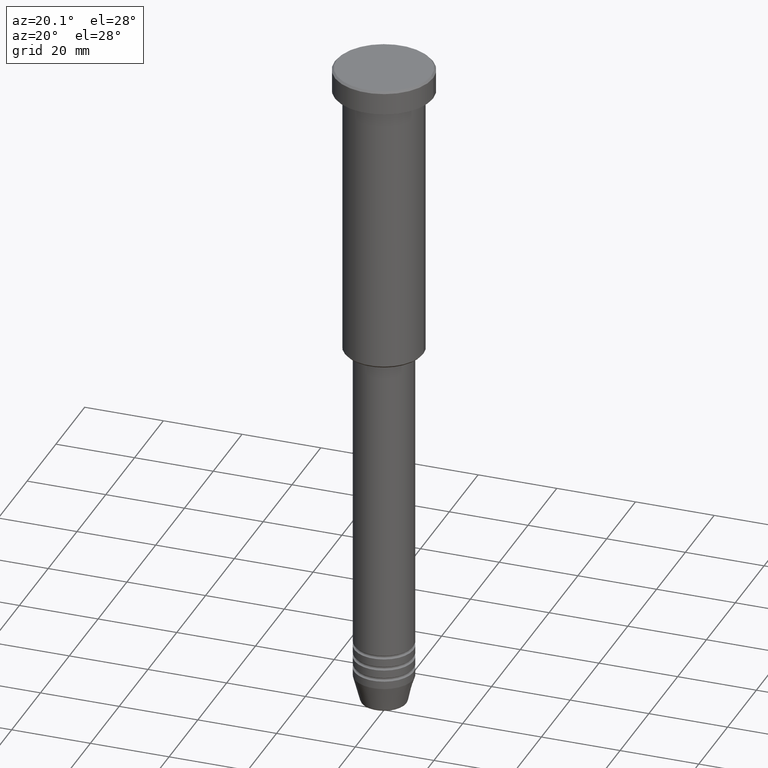
[diagram: clean part render]
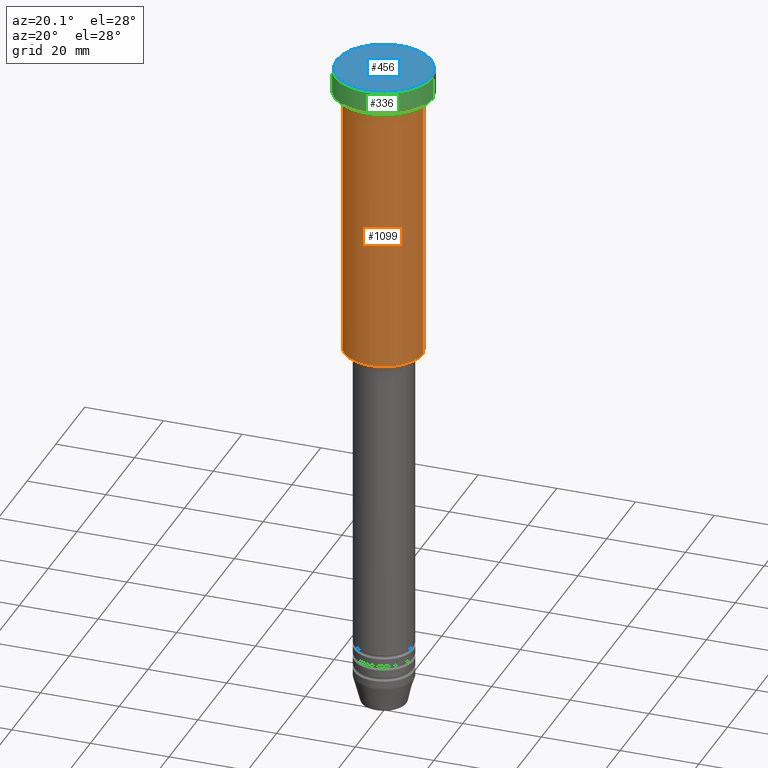
[diagram: same view with three faces highlighted in distinct colors, each labeled with its STEP entity id]
A machine part, auxiliary view with three faces highlighted in distinct colors.
Their STEP definitions:

[orange] entity #1099 — the highlighted cylindrical surface (partial cylindrical patch) has radius 10 mm, axis along (-0, -0, 1).
#32 = CARTESIAN_POINT ( 'NONE',  ( -10.00000000000000000, 1.224646799147353256E-15, -75.49999999999998579 ) ) ;
#100 = CIRCLE ( 'NONE', #1055, 10.00000000000000000 ) ;
#110 = CARTESIAN_POINT ( 'NONE',  ( 0.000000000000000000, 0.000000000000000000, -6.999999999999996447 ) ) ;
#124 = VERTEX_POINT ( 'NONE', #806 ) ;
#133 = CARTESIAN_POINT ( 'NONE',  ( -10.00000000000000000, 1.224646799147353256E-15, -6.999999999999996447 ) ) ;
#225 = ORIENTED_EDGE ( 'NONE', *, *, #500, .T. ) ;
#257 = CYLINDRICAL_SURFACE ( 'NONE', #960, 10.00000000000000000 ) ;
#261 = EDGE_CURVE ( 'NONE', #983, #124, #100, .T. ) ;
#266 = CARTESIAN_POINT ( 'NONE',  ( 0.000000000000000000, 0.000000000000000000, -75.49999999999998579 ) ) ;
#272 = DIRECTION ( 'NONE',  ( -0.000000000000000000, -0.000000000000000000, 1.000000000000000000 ) ) ;
#312 = DIRECTION ( 'NONE',  ( -0.000000000000000000, -0.000000000000000000, 1.000000000000000000 ) ) ;
#377 = VERTEX_POINT ( 'NONE', #635 ) ;
#389 = EDGE_CURVE ( 'NONE', #540, #377, #729, .T. ) ;
#397 = CARTESIAN_POINT ( 'NONE',  ( -10.00000000000000000, 1.224646799147353256E-15, 0.000000000000000000 ) ) ;
#492 = LINE ( 'NONE', #1053, #801 ) ;
#500 = EDGE_CURVE ( 'NONE', #124, #377, #492, .T. ) ;
#540 = VERTEX_POINT ( 'NONE', #133 ) ;
#573 = AXIS2_PLACEMENT_3D ( 'NONE', #110, #272, #1023 ) ;
#589 = VECTOR ( 'NONE', #312, 1000.000000000000000 ) ;
#597 = FACE_OUTER_BOUND ( 'NONE', #1033, .T. ) ;
#635 = CARTESIAN_POINT ( 'NONE',  ( 10.00000000000000000, 0.000000000000000000, -6.999999999999996447 ) ) ;
#656 = ORIENTED_EDGE ( 'NONE', *, *, #261, .T. ) ;
#661 = ORIENTED_EDGE ( 'NONE', *, *, #954, .F. ) ;
#682 = LINE ( 'NONE', #397, #589 ) ;
#693 = CARTESIAN_POINT ( 'NONE',  ( 0.000000000000000000, 0.000000000000000000, 0.000000000000000000 ) ) ;
#729 = CIRCLE ( 'NONE', #573, 10.00000000000000000 ) ;
#777 = ORIENTED_EDGE ( 'NONE', *, *, #389, .F. ) ;
#801 = VECTOR ( 'NONE', #1058, 1000.000000000000000 ) ;
#806 = CARTESIAN_POINT ( 'NONE',  ( 10.00000000000000000, 0.000000000000000000, -75.49999999999998579 ) ) ;
#875 = DIRECTION ( 'NONE',  ( 1.000000000000000000, 0.000000000000000000, 0.000000000000000000 ) ) ;
#903 = DIRECTION ( 'NONE',  ( -0.000000000000000000, -0.000000000000000000, 1.000000000000000000 ) ) ;
#954 = EDGE_CURVE ( 'NONE', #983, #540, #682, .T. ) ;
#960 = AXIS2_PLACEMENT_3D ( 'NONE', #693, #967, #875 ) ;
#967 = DIRECTION ( 'NONE',  ( -0.000000000000000000, -0.000000000000000000, 1.000000000000000000 ) ) ;
#983 = VERTEX_POINT ( 'NONE', #32 ) ;
#1023 = DIRECTION ( 'NONE',  ( 1.000000000000000000, 0.000000000000000000, 0.000000000000000000 ) ) ;
#1033 = EDGE_LOOP ( 'NONE', ( #661, #656, #225, #777 ) ) ;
#1053 = CARTESIAN_POINT ( 'NONE',  ( 10.00000000000000000, 0.000000000000000000, 0.000000000000000000 ) ) ;
#1055 = AXIS2_PLACEMENT_3D ( 'NONE', #266, #903, #1069 ) ;
#1058 = DIRECTION ( 'NONE',  ( -0.000000000000000000, -0.000000000000000000, 1.000000000000000000 ) ) ;
#1069 = DIRECTION ( 'NONE',  ( -1.000000000000000000, 0.000000000000000000, 0.000000000000000000 ) ) ;
#1099 = ADVANCED_FACE ( 'NONE', ( #597 ), #257, .T. ) ;

[blue] entity #456 — the highlighted planar face has unit normal (0, -0, 1).
#26 = DIRECTION ( 'NONE',  ( 1.000000000000000000, 0.000000000000000000, 0.000000000000000000 ) ) ;
#176 = AXIS2_PLACEMENT_3D ( 'NONE', #1034, #963, #26 ) ;
#226 = PLANE ( 'NONE',  #957 ) ;
#293 = ORIENTED_EDGE ( 'NONE', *, *, #969, .T. ) ;
#363 = CIRCLE ( 'NONE', #176, 12.00000000000001066 ) ;
#400 = DIRECTION ( 'NONE',  ( 0.000000000000000000, -0.000000000000000000, 1.000000000000000000 ) ) ;
#419 = AXIS2_PLACEMENT_3D ( 'NONE', #857, #678, #1049 ) ;
#420 = CARTESIAN_POINT ( 'NONE',  ( -12.00000000000001066, 0.000000000000000000, 0.000000000000000000 ) ) ;
#456 = ADVANCED_FACE ( 'NONE', ( #586 ), #226, .T. ) ;
#471 = VERTEX_POINT ( 'NONE', #1148 ) ;
#506 = ORIENTED_EDGE ( 'NONE', *, *, #583, .T. ) ;
#583 = EDGE_CURVE ( 'NONE', #1127, #471, #877, .T. ) ;
#586 = FACE_OUTER_BOUND ( 'NONE', #976, .T. ) ;
#678 = DIRECTION ( 'NONE',  ( -0.000000000000000000, -0.000000000000000000, 1.000000000000000000 ) ) ;
#850 = CARTESIAN_POINT ( 'NONE',  ( 0.000000000000000000, 0.000000000000000000, 0.000000000000000000 ) ) ;
#857 = CARTESIAN_POINT ( 'NONE',  ( 0.000000000000000000, 0.000000000000000000, 0.000000000000000000 ) ) ;
#873 = DIRECTION ( 'NONE',  ( 1.000000000000000000, 0.000000000000000000, 0.000000000000000000 ) ) ;
#877 = CIRCLE ( 'NONE', #419, 12.00000000000001066 ) ;
#957 = AXIS2_PLACEMENT_3D ( 'NONE', #850, #400, #873 ) ;
#963 = DIRECTION ( 'NONE',  ( -0.000000000000000000, -0.000000000000000000, 1.000000000000000000 ) ) ;
#969 = EDGE_CURVE ( 'NONE', #471, #1127, #363, .T. ) ;
#976 = EDGE_LOOP ( 'NONE', ( #506, #293 ) ) ;
#1034 = CARTESIAN_POINT ( 'NONE',  ( 0.000000000000000000, 0.000000000000000000, 0.000000000000000000 ) ) ;
#1049 = DIRECTION ( 'NONE',  ( 1.000000000000000000, 0.000000000000000000, 0.000000000000000000 ) ) ;
#1127 = VERTEX_POINT ( 'NONE', #420 ) ;
#1148 = CARTESIAN_POINT ( 'NONE',  ( 12.00000000000001066, 1.500192328955508326E-15, 0.000000000000000000 ) ) ;

[green] entity #336 — the highlighted cylindrical surface (partial cylindrical patch) has radius 12.5 mm, axis along (-0, -0, 1).
#7 = DIRECTION ( 'NONE',  ( 1.000000000000000000, 0.000000000000000000, 0.000000000000000000 ) ) ;
#31 = ORIENTED_EDGE ( 'NONE', *, *, #657, .F. ) ;
#62 = AXIS2_PLACEMENT_3D ( 'NONE', #923, #105, #485 ) ;
#71 = CARTESIAN_POINT ( 'NONE',  ( -12.50000000000000000, 1.530808498934191521E-15, 0.000000000000000000 ) ) ;
#73 = ORIENTED_EDGE ( 'NONE', *, *, #426, .T. ) ;
#83 = CARTESIAN_POINT ( 'NONE',  ( 12.50000000000000000, 0.000000000000000000, -0.4999999999999917843 ) ) ;
#105 = DIRECTION ( 'NONE',  ( -0.000000000000000000, -0.000000000000000000, 1.000000000000000000 ) ) ;
#216 = ORIENTED_EDGE ( 'NONE', *, *, #688, .T. ) ;
#242 = EDGE_CURVE ( 'NONE', #709, #653, #609, .T. ) ;
#308 = CIRCLE ( 'NONE', #882, 12.50000000000000000 ) ;
#336 = ADVANCED_FACE ( 'NONE', ( #548 ), #554, .T. ) ;
#348 = CARTESIAN_POINT ( 'NONE',  ( 0.000000000000000000, 0.000000000000000000, -0.4999999999999917843 ) ) ;
#352 = CARTESIAN_POINT ( 'NONE',  ( -12.50000000000000000, 1.530808498934191521E-15, -0.4999999999999917843 ) ) ;
#365 = CARTESIAN_POINT ( 'NONE',  ( 0.000000000000000000, 0.000000000000000000, -5.999999999999996447 ) ) ;
#426 = EDGE_CURVE ( 'NONE', #1056, #1176, #308, .T. ) ;
#427 = DIRECTION ( 'NONE',  ( -0.000000000000000000, -0.000000000000000000, 1.000000000000000000 ) ) ;
#441 = DIRECTION ( 'NONE',  ( 1.000000000000000000, 0.000000000000000000, 0.000000000000000000 ) ) ;
#485 = DIRECTION ( 'NONE',  ( 1.000000000000000000, 0.000000000000000000, 0.000000000000000000 ) ) ;
#494 = VECTOR ( 'NONE', #427, 1000.000000000000000 ) ;
#508 = DIRECTION ( 'NONE',  ( -0.000000000000000000, -0.000000000000000000, 1.000000000000000000 ) ) ;
#510 = EDGE_LOOP ( 'NONE', ( #31, #73, #216, #1126 ) ) ;
#548 = FACE_OUTER_BOUND ( 'NONE', #510, .T. ) ;
#554 = CYLINDRICAL_SURFACE ( 'NONE', #62, 12.50000000000000000 ) ;
#609 = CIRCLE ( 'NONE', #899, 12.50000000000000000 ) ;
#615 = LINE ( 'NONE', #71, #1068 ) ;
#621 = LINE ( 'NONE', #884, #494 ) ;
#622 = DIRECTION ( 'NONE',  ( 0.000000000000000000, 0.000000000000000000, -1.000000000000000000 ) ) ;
#653 = VERTEX_POINT ( 'NONE', #352 ) ;
#657 = EDGE_CURVE ( 'NONE', #1056, #653, #615, .T. ) ;
#688 = EDGE_CURVE ( 'NONE', #1176, #709, #621, .T. ) ;
#709 = VERTEX_POINT ( 'NONE', #83 ) ;
#824 = DIRECTION ( 'NONE',  ( -0.000000000000000000, -0.000000000000000000, 1.000000000000000000 ) ) ;
#882 = AXIS2_PLACEMENT_3D ( 'NONE', #365, #824, #7 ) ;
#884 = CARTESIAN_POINT ( 'NONE',  ( 12.50000000000000000, 0.000000000000000000, 0.000000000000000000 ) ) ;
#899 = AXIS2_PLACEMENT_3D ( 'NONE', #348, #622, #441 ) ;
#923 = CARTESIAN_POINT ( 'NONE',  ( 0.000000000000000000, 0.000000000000000000, 0.000000000000000000 ) ) ;
#924 = CARTESIAN_POINT ( 'NONE',  ( 12.50000000000000000, 0.000000000000000000, -5.999999999999996447 ) ) ;
#1056 = VERTEX_POINT ( 'NONE', #1060 ) ;
#1060 = CARTESIAN_POINT ( 'NONE',  ( -12.50000000000000000, 1.530808498934191521E-15, -5.999999999999996447 ) ) ;
#1068 = VECTOR ( 'NONE', #508, 1000.000000000000000 ) ;
#1126 = ORIENTED_EDGE ( 'NONE', *, *, #242, .T. ) ;
#1176 = VERTEX_POINT ( 'NONE', #924 ) ;